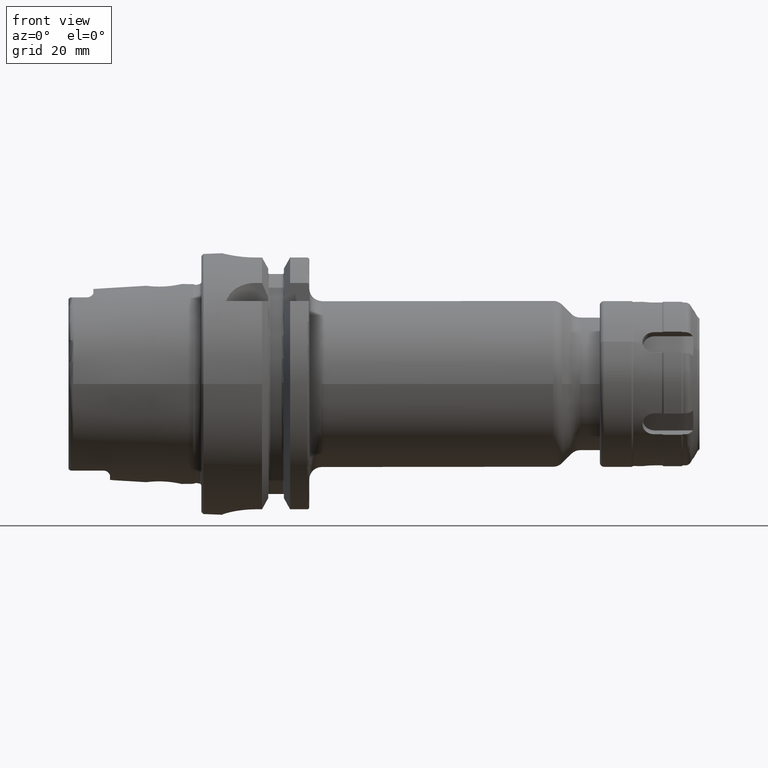
[diagram: clean part render]
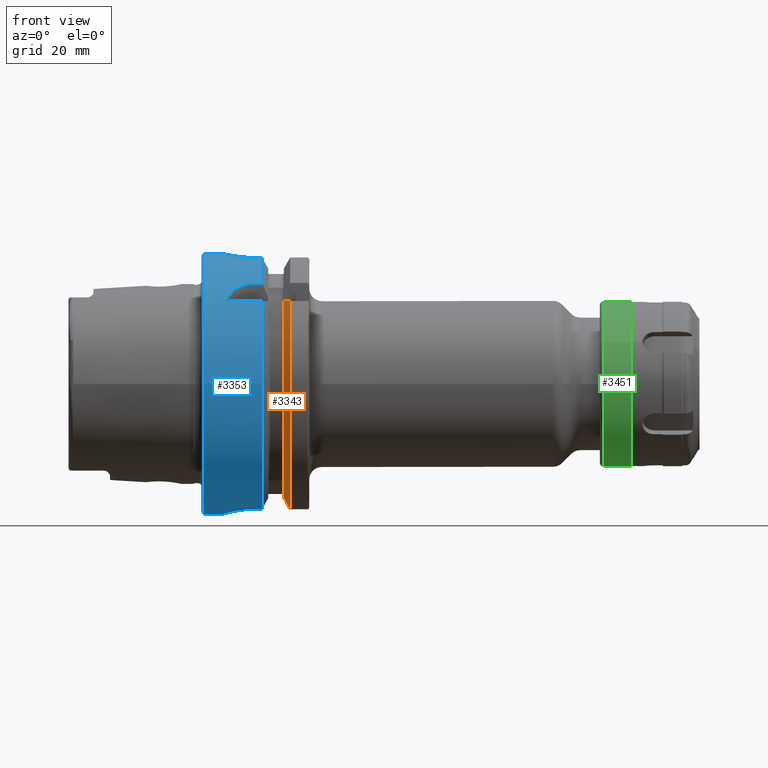
[diagram: same view with three faces highlighted in distinct colors, each labeled with its STEP entity id]
A machine part, front view with three faces highlighted in distinct colors.
Their STEP definitions:

[orange] entity #3343 — the highlighted conical surface has half-angle 60 deg.
#29=(
BOUNDED_CURVE()
B_SPLINE_CURVE(2,(#5849,#5850,#5851),.UNSPECIFIED.,.F.,.F.)
B_SPLINE_CURVE_WITH_KNOTS((3,3),(0.,0.378858277140999),.UNSPECIFIED.)
CURVE()
GEOMETRIC_REPRESENTATION_ITEM()
RATIONAL_B_SPLINE_CURVE((1.,1.00166199353854,1.))
REPRESENTATION_ITEM('')
);
#35=(
BOUNDED_CURVE()
B_SPLINE_CURVE(2,(#5989,#5990,#5991),.UNSPECIFIED.,.F.,.F.)
B_SPLINE_CURVE_WITH_KNOTS((3,3),(0.,0.311314369989023),.UNSPECIFIED.)
CURVE()
GEOMETRIC_REPRESENTATION_ITEM()
RATIONAL_B_SPLINE_CURVE((1.,1.00102053193598,1.))
REPRESENTATION_ITEM('')
);
#382=FACE_OUTER_BOUND('',#580,.T.);
#580=EDGE_LOOP('',(#2575,#2576,#2577,#2578));
#1194=CIRCLE('',#3657,28.8975952641916);
#1208=CIRCLE('',#3690,31.5);
#1432=VERTEX_POINT('',#5845);
#1434=VERTEX_POINT('',#5848);
#1456=VERTEX_POINT('',#5945);
#1461=VERTEX_POINT('',#5987);
#1812=EDGE_CURVE('',#1434,#1432,#29,.T.);
#1842=EDGE_CURVE('',#1432,#1456,#1194,.T.);
#1852=EDGE_CURVE('',#1456,#1461,#35,.T.);
#1899=EDGE_CURVE('',#1434,#1461,#1208,.T.);
#2575=ORIENTED_EDGE('',*,*,#1812,.T.);
#2576=ORIENTED_EDGE('',*,*,#1842,.T.);
#2577=ORIENTED_EDGE('',*,*,#1852,.T.);
#2578=ORIENTED_EDGE('',*,*,#1899,.F.);
#3241=CONICAL_SURFACE('',#3697,30.1987976320958,1.0471975511966);
#3343=ADVANCED_FACE('',(#382),#3241,.T.);
#3657=AXIS2_PLACEMENT_3D('',#5947,#4263,#4264);
#3690=AXIS2_PLACEMENT_3D('',#6199,#4349,#4350);
#3697=AXIS2_PLACEMENT_3D('',#6214,#4365,#4366);
#4263=DIRECTION('center_axis',(1.,0.,0.));
#4264=DIRECTION('ref_axis',(0.,0.,-1.));
#4349=DIRECTION('center_axis',(1.,0.,0.));
#4350=DIRECTION('ref_axis',(0.,0.,-1.));
#4365=DIRECTION('center_axis',(1.,0.,0.));
#4366=DIRECTION('ref_axis',(0.,-0.966819045705046,-0.255462194584608));
#5845=CARTESIAN_POINT('',(19.875,-20.8583559288126,20.));
#5848=CARTESIAN_POINT('',(21.3774990747593,-24.3361870472759,20.));
#5849=CARTESIAN_POINT('Ctrl Pts',(21.3774990747593,-24.3361870472759,20.));
#5850=CARTESIAN_POINT('Ctrl Pts',(20.5684390397668,-22.5223452916166,20.));
#5851=CARTESIAN_POINT('Ctrl Pts',(19.875,-20.8583559288126,20.));
#5945=CARTESIAN_POINT('',(19.875,-9.,-27.4603534582684));
#5947=CARTESIAN_POINT('Origin',(19.875,0.,0.));
#5987=CARTESIAN_POINT('',(21.3774990747593,-9.,-30.1869176962472));
#5989=CARTESIAN_POINT('Ctrl Pts',(19.875,-9.,-27.4603534582684));
#5990=CARTESIAN_POINT('Ctrl Pts',(20.5907174110267,-9.,-28.7648946319029));
#5991=CARTESIAN_POINT('Ctrl Pts',(21.3774990747593,-9.,-30.1869176962472));
#6199=CARTESIAN_POINT('Origin',(21.3774990747593,0.,0.));
#6214=CARTESIAN_POINT('Origin',(20.6262495373797,0.,0.));

[blue] entity #3353 — the highlighted cylindrical surface (bore or boss wall) has radius 31.5 mm, axis along (1, 0, 0).
#76=B_SPLINE_CURVE_WITH_KNOTS('',3,(#5807,#5808,#5809,#5810,#5811,#5812,
#5813,#5814,#5815,#5816,#5817,#5818,#5819,#5820,#5821,#5822,#5823,#5824,
#5825,#5826,#5827,#5828,#5829,#5830,#5831,#5832),.UNSPECIFIED.,.F.,.F.,
(4,2,2,2,2,2,2,2,2,2,2,2,4),(0.,0.188688694287612,0.377377388575223,0.56606194688798,
0.754746505200737,0.943431063513494,1.13211562182625,1.32080431611386,1.50949301040147,
1.69818170468909,1.8868703989767,2.07555495728945,2.26423951560221),
 .UNSPECIFIED.);
#77=B_SPLINE_CURVE_WITH_KNOTS('',3,(#5833,#5834,#5835,#5836,#5837,#5838,
#5839,#5840,#5841,#5842),.UNSPECIFIED.,.F.,.F.,(4,2,2,2,4),(2.26423951560221,
2.45292407391497,2.64160863222773,2.83029732651534,3.01898602080295),
 .UNSPECIFIED.);
#80=B_SPLINE_CURVE_WITH_KNOTS('',3,(#5899,#5900,#5901,#5902,#5903,#5904,
#5905,#5906,#5907,#5908,#5909,#5910),.UNSPECIFIED.,.F.,.F.,(4,2,2,2,2,4),
(1.1085154204615,1.31979218709236,1.52798350480179,1.73617482251122,1.90421770126337,
2.07226058001552),.UNSPECIFIED.);
#90=B_SPLINE_CURVE_WITH_KNOTS('',3,(#6079,#6080,#6081,#6082,#6083,#6084,
#6085,#6086,#6087,#6088),.UNSPECIFIED.,.F.,.F.,(4,2,2,2,4),(1.20927420824097,
1.5131742975437,1.81707438684643,2.12000449915965,2.42293461147287),
 .UNSPECIFIED.);
#93=B_SPLINE_CURVE_WITH_KNOTS('',3,(#6114,#6115,#6116,#6117,#6118,#6119,
#6120,#6121,#6122,#6123),.UNSPECIFIED.,.F.,.F.,(4,2,2,2,4),(0.,0.30293011231322,
0.605860224626439,0.90976031392917,1.2136604032319),.UNSPECIFIED.);
#103=B_SPLINE_CURVE_WITH_KNOTS('',3,(#6269,#6270,#6271,#6272,#6273,#6274,
#6275,#6276,#6277,#6278,#6279,#6280,#6281,#6282,#6283,#6284,#6285,#6286),
 .UNSPECIFIED.,.F.,.F.,(4,2,2,2,2,2,2,2,4),(0.,0.302805879979318,0.605611759958635,
0.908372461246501,1.21113316253437,1.51389386382223,1.8166545651101,2.11946044508942,
2.42226632506874),.UNSPECIFIED.);
#152=FACE_BOUND('',#591,.T.);
#280=CYLINDRICAL_SURFACE('',#3709,31.5);
#392=FACE_OUTER_BOUND('',#590,.T.);
#590=EDGE_LOOP('',(#2637,#2638,#2639,#2640,#2641,#2642,#2643,#2644,#2645,
#2646,#2647,#2648,#2649,#2650,#2651,#2652,#2653,#2654));
#591=EDGE_LOOP('',(#2655,#2656));
#764=LINE('',#5874,#970);
#769=LINE('',#5919,#975);
#787=LINE('',#6096,#993);
#788=LINE('',#6100,#994);
#800=LINE('',#6263,#1006);
#803=LINE('',#6293,#1009);
#805=LINE('',#6299,#1011);
#970=VECTOR('',#4227,10.);
#975=VECTOR('',#4238,10.);
#993=VECTOR('',#4302,10.);
#994=VECTOR('',#4305,10.);
#1006=VECTOR('',#4383,10.);
#1009=VECTOR('',#4394,10.);
#1011=VECTOR('',#4402,31.5);
#1190=CIRCLE('',#3652,31.5);
#1191=CIRCLE('',#3653,31.5);
#1199=CIRCLE('',#3673,31.5);
#1200=CIRCLE('',#3675,31.5);
#1214=CIRCLE('',#3710,31.5);
#1215=CIRCLE('',#3711,31.5);
#1430=VERTEX_POINT('',#5804);
#1431=VERTEX_POINT('',#5806);
#1439=VERTEX_POINT('',#5871);
#1440=VERTEX_POINT('',#5873);
#1444=VERTEX_POINT('',#5898);
#1446=VERTEX_POINT('',#5915);
#1451=VERTEX_POINT('',#5931);
#1452=VERTEX_POINT('',#5933);
#1477=VERTEX_POINT('',#6077);
#1478=VERTEX_POINT('',#6078);
#1479=VERTEX_POINT('',#6098);
#1480=VERTEX_POINT('',#6099);
#1483=VERTEX_POINT('',#6113);
#1484=VERTEX_POINT('',#6128);
#1500=VERTEX_POINT('',#6260);
#1501=VERTEX_POINT('',#6262);
#1502=VERTEX_POINT('',#6268);
#1504=VERTEX_POINT('',#6298);
#1809=EDGE_CURVE('',#1431,#1430,#76,.T.);
#1810=EDGE_CURVE('',#1430,#1431,#77,.T.);
#1819=EDGE_CURVE('',#1440,#1439,#764,.T.);
#1825=EDGE_CURVE('',#1439,#1444,#80,.T.);
#1829=EDGE_CURVE('',#1444,#1446,#769,.T.);
#1835=EDGE_CURVE('',#1440,#1451,#1190,.T.);
#1836=EDGE_CURVE('',#1451,#1452,#1191,.T.);
#1870=EDGE_CURVE('',#1477,#1478,#90,.T.);
#1874=EDGE_CURVE('',#1478,#1452,#787,.T.);
#1875=EDGE_CURVE('',#1479,#1480,#788,.T.);
#1880=EDGE_CURVE('',#1480,#1483,#93,.T.);
#1882=EDGE_CURVE('',#1483,#1477,#1199,.T.);
#1883=EDGE_CURVE('',#1479,#1484,#1200,.T.);
#1915=EDGE_CURVE('',#1501,#1500,#800,.T.);
#1917=EDGE_CURVE('',#1500,#1502,#103,.T.);
#1921=EDGE_CURVE('',#1502,#1484,#803,.T.);
#1923=EDGE_CURVE('',#1501,#1446,#1214,.T.);
#1924=EDGE_CURVE('',#1451,#1504,#805,.T.);
#1925=EDGE_CURVE('',#1504,#1504,#1215,.T.);
#2637=ORIENTED_EDGE('',*,*,#1829,.T.);
#2638=ORIENTED_EDGE('',*,*,#1923,.F.);
#2639=ORIENTED_EDGE('',*,*,#1915,.T.);
#2640=ORIENTED_EDGE('',*,*,#1917,.T.);
#2641=ORIENTED_EDGE('',*,*,#1921,.T.);
#2642=ORIENTED_EDGE('',*,*,#1883,.F.);
#2643=ORIENTED_EDGE('',*,*,#1875,.T.);
#2644=ORIENTED_EDGE('',*,*,#1880,.T.);
#2645=ORIENTED_EDGE('',*,*,#1882,.T.);
#2646=ORIENTED_EDGE('',*,*,#1870,.T.);
#2647=ORIENTED_EDGE('',*,*,#1874,.T.);
#2648=ORIENTED_EDGE('',*,*,#1836,.F.);
#2649=ORIENTED_EDGE('',*,*,#1924,.T.);
#2650=ORIENTED_EDGE('',*,*,#1925,.T.);
#2651=ORIENTED_EDGE('',*,*,#1924,.F.);
#2652=ORIENTED_EDGE('',*,*,#1835,.F.);
#2653=ORIENTED_EDGE('',*,*,#1819,.T.);
#2654=ORIENTED_EDGE('',*,*,#1825,.T.);
#2655=ORIENTED_EDGE('',*,*,#1809,.T.);
#2656=ORIENTED_EDGE('',*,*,#1810,.T.);
#3353=ADVANCED_FACE('',(#392,#152),#280,.T.);
#3652=AXIS2_PLACEMENT_3D('',#5932,#4251,#4252);
#3653=AXIS2_PLACEMENT_3D('',#5934,#4253,#4254);
#3673=AXIS2_PLACEMENT_3D('',#6126,#4313,#4314);
#3675=AXIS2_PLACEMENT_3D('',#6129,#4317,#4318);
#3709=AXIS2_PLACEMENT_3D('',#6296,#4398,#4399);
#3710=AXIS2_PLACEMENT_3D('',#6297,#4400,#4401);
#3711=AXIS2_PLACEMENT_3D('',#6300,#4403,#4404);
#4227=DIRECTION('',(-1.,0.,0.));
#4238=DIRECTION('',(1.,0.,0.));
#4251=DIRECTION('center_axis',(1.,0.,0.));
#4252=DIRECTION('ref_axis',(0.,0.,-1.));
#4253=DIRECTION('center_axis',(1.,0.,0.));
#4254=DIRECTION('ref_axis',(0.,0.,-1.));
#4302=DIRECTION('',(1.,0.,0.));
#4305=DIRECTION('',(-1.,0.,0.));
#4313=DIRECTION('center_axis',(-1.,0.,0.));
#4314=DIRECTION('ref_axis',(0.,1.,0.));
#4317=DIRECTION('center_axis',(1.,0.,0.));
#4318=DIRECTION('ref_axis',(0.,0.,-1.));
#4383=DIRECTION('',(-1.,0.,0.));
#4394=DIRECTION('',(1.,0.,0.));
#4398=DIRECTION('center_axis',(1.,0.,0.));
#4399=DIRECTION('ref_axis',(0.,1.,0.));
#4400=DIRECTION('center_axis',(1.,0.,0.));
#4401=DIRECTION('ref_axis',(0.,0.,-1.));
#4402=DIRECTION('',(-1.,0.,0.));
#4403=DIRECTION('center_axis',(1.,0.,0.));
#4404=DIRECTION('ref_axis',(0.,0.,-1.));
#5804=CARTESIAN_POINT('',(12.,31.5,-6.12323399573677E-16));
#5806=CARTESIAN_POINT('',(7.,31.100643080168,5.));
#5807=CARTESIAN_POINT('Ctrl Pts',(7.,31.100643080168,5.));
#5808=CARTESIAN_POINT('Ctrl Pts',(6.37103768570796,31.100643080168,5.));
#5809=CARTESIAN_POINT('Ctrl Pts',(5.70089281579202,31.1216953112949,4.87408354368814));
#5810=CARTESIAN_POINT('Ctrl Pts',(4.46931934300962,31.1973810209855,4.36348784122736));
#5811=CARTESIAN_POINT('Ctrl Pts',(3.90779781350673,31.2508828501623,3.97886562537221));
#5812=CARTESIAN_POINT('Ctrl Pts',(3.021144092268,31.3510329557602,3.09221190413348));
#5813=CARTESIAN_POINT('Ctrl Pts',(2.63651425348544,31.4042391414288,2.5306861925578));
#5814=CARTESIAN_POINT('Ctrl Pts',(2.12591301120586,31.4792463697936,1.29909839144709));
#5815=CARTESIAN_POINT('Ctrl Pts',(2.,31.5,0.62894852770919));
#5816=CARTESIAN_POINT('Ctrl Pts',(2.,31.5,-0.62894852770919));
#5817=CARTESIAN_POINT('Ctrl Pts',(2.12591301120586,31.4792463697936,-1.29909839144709));
#5818=CARTESIAN_POINT('Ctrl Pts',(2.63651425348544,31.4042391414288,-2.5306861925578));
#5819=CARTESIAN_POINT('Ctrl Pts',(3.021144092268,31.3510329557602,-3.09221190413348));
#5820=CARTESIAN_POINT('Ctrl Pts',(3.90779781350673,31.2508828501623,-3.97886562537221));
#5821=CARTESIAN_POINT('Ctrl Pts',(4.46931934300962,31.1973810209855,-4.36348784122736));
#5822=CARTESIAN_POINT('Ctrl Pts',(5.70089281579202,31.1216953112949,-4.87408354368814));
#5823=CARTESIAN_POINT('Ctrl Pts',(6.37103768570796,31.100643080168,-5.));
#5824=CARTESIAN_POINT('Ctrl Pts',(7.62896231429204,31.100643080168,-5.));
#5825=CARTESIAN_POINT('Ctrl Pts',(8.29910718420798,31.1216953112949,-4.87408354368814));
#5826=CARTESIAN_POINT('Ctrl Pts',(9.53068065699038,31.1973810209855,-4.36348784122736));
#5827=CARTESIAN_POINT('Ctrl Pts',(10.0922021864933,31.2508828501623,-3.97886562537221));
#5828=CARTESIAN_POINT('Ctrl Pts',(10.978855907732,31.3510329557602,-3.09221190413348));
#5829=CARTESIAN_POINT('Ctrl Pts',(11.3634857465146,31.4042391414288,-2.53068619255779));
#5830=CARTESIAN_POINT('Ctrl Pts',(11.8740869887941,31.4792463697936,-1.29909839144708));
#5831=CARTESIAN_POINT('Ctrl Pts',(12.,31.5,-0.62894852770919));
#5832=CARTESIAN_POINT('Ctrl Pts',(12.,31.5,-4.16333634234434E-16));
#5833=CARTESIAN_POINT('Ctrl Pts',(12.,31.5,-1.11022302462516E-15));
#5834=CARTESIAN_POINT('Ctrl Pts',(12.,31.5,0.628948527709188));
#5835=CARTESIAN_POINT('Ctrl Pts',(11.8740869887941,31.4792463697936,1.29909839144708));
#5836=CARTESIAN_POINT('Ctrl Pts',(11.3634857465146,31.4042391414288,2.53068619255779));
#5837=CARTESIAN_POINT('Ctrl Pts',(10.978855907732,31.3510329557602,3.09221190413348));
#5838=CARTESIAN_POINT('Ctrl Pts',(10.0922021864933,31.2508828501623,3.97886562537221));
#5839=CARTESIAN_POINT('Ctrl Pts',(9.53068065699038,31.1973810209855,4.36348784122736));
#5840=CARTESIAN_POINT('Ctrl Pts',(8.29910718420798,31.1216953112949,4.87408354368814));
#5841=CARTESIAN_POINT('Ctrl Pts',(7.62896231429204,31.100643080168,5.));
#5842=CARTESIAN_POINT('Ctrl Pts',(7.,31.100643080168,5.));
#5871=CARTESIAN_POINT('',(5.88828609634419,-24.3361870472759,20.));
#5873=CARTESIAN_POINT('',(14.6225009252407,-24.3361870472759,20.));
#5874=CARTESIAN_POINT('',(7.56125046262034,-24.3361870472759,20.));
#5898=CARTESIAN_POINT('',(13.,-20.,24.3361870472759));
#5899=CARTESIAN_POINT('Ctrl Pts',(5.88828609634419,-24.3361870472759,20.));
#5900=CARTESIAN_POINT('Ctrl Pts',(6.11069532820048,-23.9044753723342,20.5253108035937));
#5901=CARTESIAN_POINT('Ctrl Pts',(6.38325999044306,-23.4713523250807,21.0173865932788));
#5902=CARTESIAN_POINT('Ctrl Pts',(7.044898076458,-22.6317364276543,21.9186738868096));
#5903=CARTESIAN_POINT('Ctrl Pts',(7.46714468561685,-22.1861072682036,22.3682920878559));
#5904=CARTESIAN_POINT('Ctrl Pts',(8.46725531403812,-21.3767026700071,23.143042657319));
#5905=CARTESIAN_POINT('Ctrl Pts',(9.04646427720221,-21.0147449478223,23.4683362269255));
#5906=CARTESIAN_POINT('Ctrl Pts',(10.1145001432702,-20.5200081116516,23.9011603796022));
#5907=CARTESIAN_POINT('Ctrl Pts',(10.670823971716,-20.3234249831704,24.0673462447194));
#5908=CARTESIAN_POINT('Ctrl Pts',(11.8334528721306,-20.063121855676,24.2847667849476));
#5909=CARTESIAN_POINT('Ctrl Pts',(12.4398570708262,-20.,24.3361870472759));
#5910=CARTESIAN_POINT('Ctrl Pts',(13.,-20.,24.3361870472759));
#5915=CARTESIAN_POINT('',(14.6225009252407,-20.,24.3361870472759));
#5919=CARTESIAN_POINT('',(7.56125046262035,-20.,24.3361870472759));
#5931=CARTESIAN_POINT('',(14.6225009252407,-31.5,-3.85763741731416E-15));
#5932=CARTESIAN_POINT('Origin',(14.6225009252407,0.,0.));
#5933=CARTESIAN_POINT('',(14.6225009252407,-9.,-30.1869176962472));
#5934=CARTESIAN_POINT('Origin',(14.6225009252407,0.,0.));
#6077=CARTESIAN_POINT('',(5.,-0.999999999999999,-31.4841229828623));
#6078=CARTESIAN_POINT('',(13.,-9.,-30.1869176962472));
#6079=CARTESIAN_POINT('Ctrl Pts',(5.,-0.999999999999997,-31.4841229828623));
#6080=CARTESIAN_POINT('Ctrl Pts',(5.,-2.01248971281587,-31.4519642432536));
#6081=CARTESIAN_POINT('Ctrl Pts',(5.2037733306458,-3.08756640398171,-31.3640631381934));
#6082=CARTESIAN_POINT('Ctrl Pts',(6.02370102555041,-5.05836608044729,-31.1070804719497));
#6083=CARTESIAN_POINT('Ctrl Pts',(6.63955745341061,-5.95454409907418,-30.9405445582004));
#6084=CARTESIAN_POINT('Ctrl Pts',(8.05472493283182,-7.36715009628369,-30.6348764237341));
#6085=CARTESIAN_POINT('Ctrl Pts',(8.9496642215883,-7.98063403850821,-30.4752177477269));
#6086=CARTESIAN_POINT('Ctrl Pts',(10.9171740660538,-8.79719825889174,-30.2496070227108));
#6087=CARTESIAN_POINT('Ctrl Pts',(11.9902329589559,-9.,-30.1869176962472));
#6088=CARTESIAN_POINT('Ctrl Pts',(13.,-9.,-30.1869176962472));
#6096=CARTESIAN_POINT('',(7.56125046262035,-8.99999999999999,-30.1869176962472));
#6098=CARTESIAN_POINT('',(14.6225009252407,9.,-30.1869176962472));
#6099=CARTESIAN_POINT('',(13.,9.00000000000001,-30.1869176962472));
#6100=CARTESIAN_POINT('',(7.56125046262034,9.00000000000001,-30.1869176962472));
#6113=CARTESIAN_POINT('',(5.,1.,-31.4841229828623));
#6114=CARTESIAN_POINT('Ctrl Pts',(13.,9.00000000000001,-30.1869176962472));
#6115=CARTESIAN_POINT('Ctrl Pts',(11.9902329589559,9.00000000000001,-30.1869176962472));
#6116=CARTESIAN_POINT('Ctrl Pts',(10.9171740660538,8.79719825889175,-30.2496070227108));
#6117=CARTESIAN_POINT('Ctrl Pts',(8.9496642215883,7.98063403850822,-30.4752177477269));
#6118=CARTESIAN_POINT('Ctrl Pts',(8.05472493283182,7.3671500962837,-30.6348764237341));
#6119=CARTESIAN_POINT('Ctrl Pts',(6.63955745341061,5.95454409907419,-30.9405445582004));
#6120=CARTESIAN_POINT('Ctrl Pts',(6.02370102555041,5.0583660804473,-31.1070804719497));
#6121=CARTESIAN_POINT('Ctrl Pts',(5.2037733306458,3.08756640398172,-31.3640631381934));
#6122=CARTESIAN_POINT('Ctrl Pts',(5.,2.01248971281588,-31.4519642432536));
#6123=CARTESIAN_POINT('Ctrl Pts',(5.,1.00000000000001,-31.4841229828623));
#6126=CARTESIAN_POINT('Origin',(5.,0.,0.));
#6128=CARTESIAN_POINT('',(14.6225009252407,8.,30.4671954731642));
#6129=CARTESIAN_POINT('Origin',(14.6225009252407,0.,0.));
#6260=CARTESIAN_POINT('',(13.,-8.,30.4671954731642));
#6262=CARTESIAN_POINT('',(14.6225009252407,-8.,30.4671954731642));
#6263=CARTESIAN_POINT('',(7.56125046262034,-8.,30.4671954731642));
#6268=CARTESIAN_POINT('',(13.,8.,30.4671954731642));
#6269=CARTESIAN_POINT('Ctrl Pts',(13.,-8.,30.4671954731643));
#6270=CARTESIAN_POINT('Ctrl Pts',(11.9906470667356,-8.,30.4671954731643));
#6271=CARTESIAN_POINT('Ctrl Pts',(10.9172075930168,-7.79737202490167,30.5225803085525));
#6272=CARTESIAN_POINT('Ctrl Pts',(8.94758399331801,-6.97961067526075,30.719895002943));
#6273=CARTESIAN_POINT('Ctrl Pts',(8.05099322370438,-6.36470172268915,30.8586830127239));
#6274=CARTESIAN_POINT('Ctrl Pts',(6.63540388828045,-4.94911238726521,31.1170994373341));
#6275=CARTESIAN_POINT('Ctrl Pts',(6.02041263015313,-4.05247770930662,31.2539072689014));
#6276=CARTESIAN_POINT('Ctrl Pts',(5.20259114887399,-2.08269813865027,31.4466478906396));
#6277=CARTESIAN_POINT('Ctrl Pts',(5.,-1.00920233762622,31.5));
#6278=CARTESIAN_POINT('Ctrl Pts',(5.,1.00920233762622,31.5));
#6279=CARTESIAN_POINT('Ctrl Pts',(5.20259114887399,2.08269813865027,31.4466478906396));
#6280=CARTESIAN_POINT('Ctrl Pts',(6.02041263015313,4.05247770930662,31.2539072689014));
#6281=CARTESIAN_POINT('Ctrl Pts',(6.63540388828045,4.94911238726521,31.1170994373341));
#6282=CARTESIAN_POINT('Ctrl Pts',(8.05099322370439,6.36470172268915,30.8586830127239));
#6283=CARTESIAN_POINT('Ctrl Pts',(8.94758399331801,6.97961067526075,30.719895002943));
#6284=CARTESIAN_POINT('Ctrl Pts',(10.9172075930168,7.79737202490167,30.5225803085525));
#6285=CARTESIAN_POINT('Ctrl Pts',(11.9906470667356,8.,30.4671954731643));
#6286=CARTESIAN_POINT('Ctrl Pts',(13.,8.,30.4671954731643));
#6293=CARTESIAN_POINT('',(7.56125046262035,8.,30.4671954731642));
#6296=CARTESIAN_POINT('Origin',(7.56125046262034,0.,0.));
#6297=CARTESIAN_POINT('Origin',(14.6225009252407,0.,0.));
#6298=CARTESIAN_POINT('',(0.5,-31.5,-3.85763741731416E-15));
#6299=CARTESIAN_POINT('',(7.56125046262034,-31.5,-3.85763741731416E-15));
#6300=CARTESIAN_POINT('Origin',(0.5,0.,0.));

[green] entity #3451 — the highlighted cylindrical surface (bore or boss wall) has radius 20 mm, axis along (-1, -0, -0).
#310=CYLINDRICAL_SURFACE('',#3924,20.);
#490=FACE_OUTER_BOUND('',#697,.T.);
#697=EDGE_LOOP('',(#3149,#3150,#3151,#3152));
#906=LINE('',#7000,#1112);
#1112=VECTOR('',#4931,20.);
#1317=CIRCLE('',#3923,20.);
#1318=CIRCLE('',#3925,20.);
#1656=VERTEX_POINT('',#6995);
#1657=VERTEX_POINT('',#6999);
#2169=EDGE_CURVE('',#1656,#1656,#1317,.T.);
#2170=EDGE_CURVE('',#1656,#1657,#906,.T.);
#2171=EDGE_CURVE('',#1657,#1657,#1318,.T.);
#3149=ORIENTED_EDGE('',*,*,#2169,.F.);
#3150=ORIENTED_EDGE('',*,*,#2170,.T.);
#3151=ORIENTED_EDGE('',*,*,#2171,.T.);
#3152=ORIENTED_EDGE('',*,*,#2170,.F.);
#3451=ADVANCED_FACE('',(#490),#310,.T.);
#3923=AXIS2_PLACEMENT_3D('',#6997,#4927,#4928);
#3924=AXIS2_PLACEMENT_3D('',#6998,#4929,#4930);
#3925=AXIS2_PLACEMENT_3D('',#7001,#4932,#4933);
#4927=DIRECTION('center_axis',(1.,0.,0.));
#4928=DIRECTION('ref_axis',(0.,1.,0.));
#4929=DIRECTION('center_axis',(1.,0.,0.));
#4930=DIRECTION('ref_axis',(0.,-1.,0.));
#4931=DIRECTION('',(-1.,0.,0.));
#4932=DIRECTION('center_axis',(1.,0.,0.));
#4933=DIRECTION('ref_axis',(0.,1.,0.));
#6995=CARTESIAN_POINT('',(23.,20.,2.44929359829471E-15));
#6997=CARTESIAN_POINT('Origin',(23.,0.,0.));
#6998=CARTESIAN_POINT('Origin',(-1.2,0.,0.));
#6999=CARTESIAN_POINT('',(16.34641016151,20.,2.44929359829471E-15));
#7000=CARTESIAN_POINT('',(-1.2,20.,2.44929359829471E-15));
#7001=CARTESIAN_POINT('Origin',(16.34641016151,0.,0.));